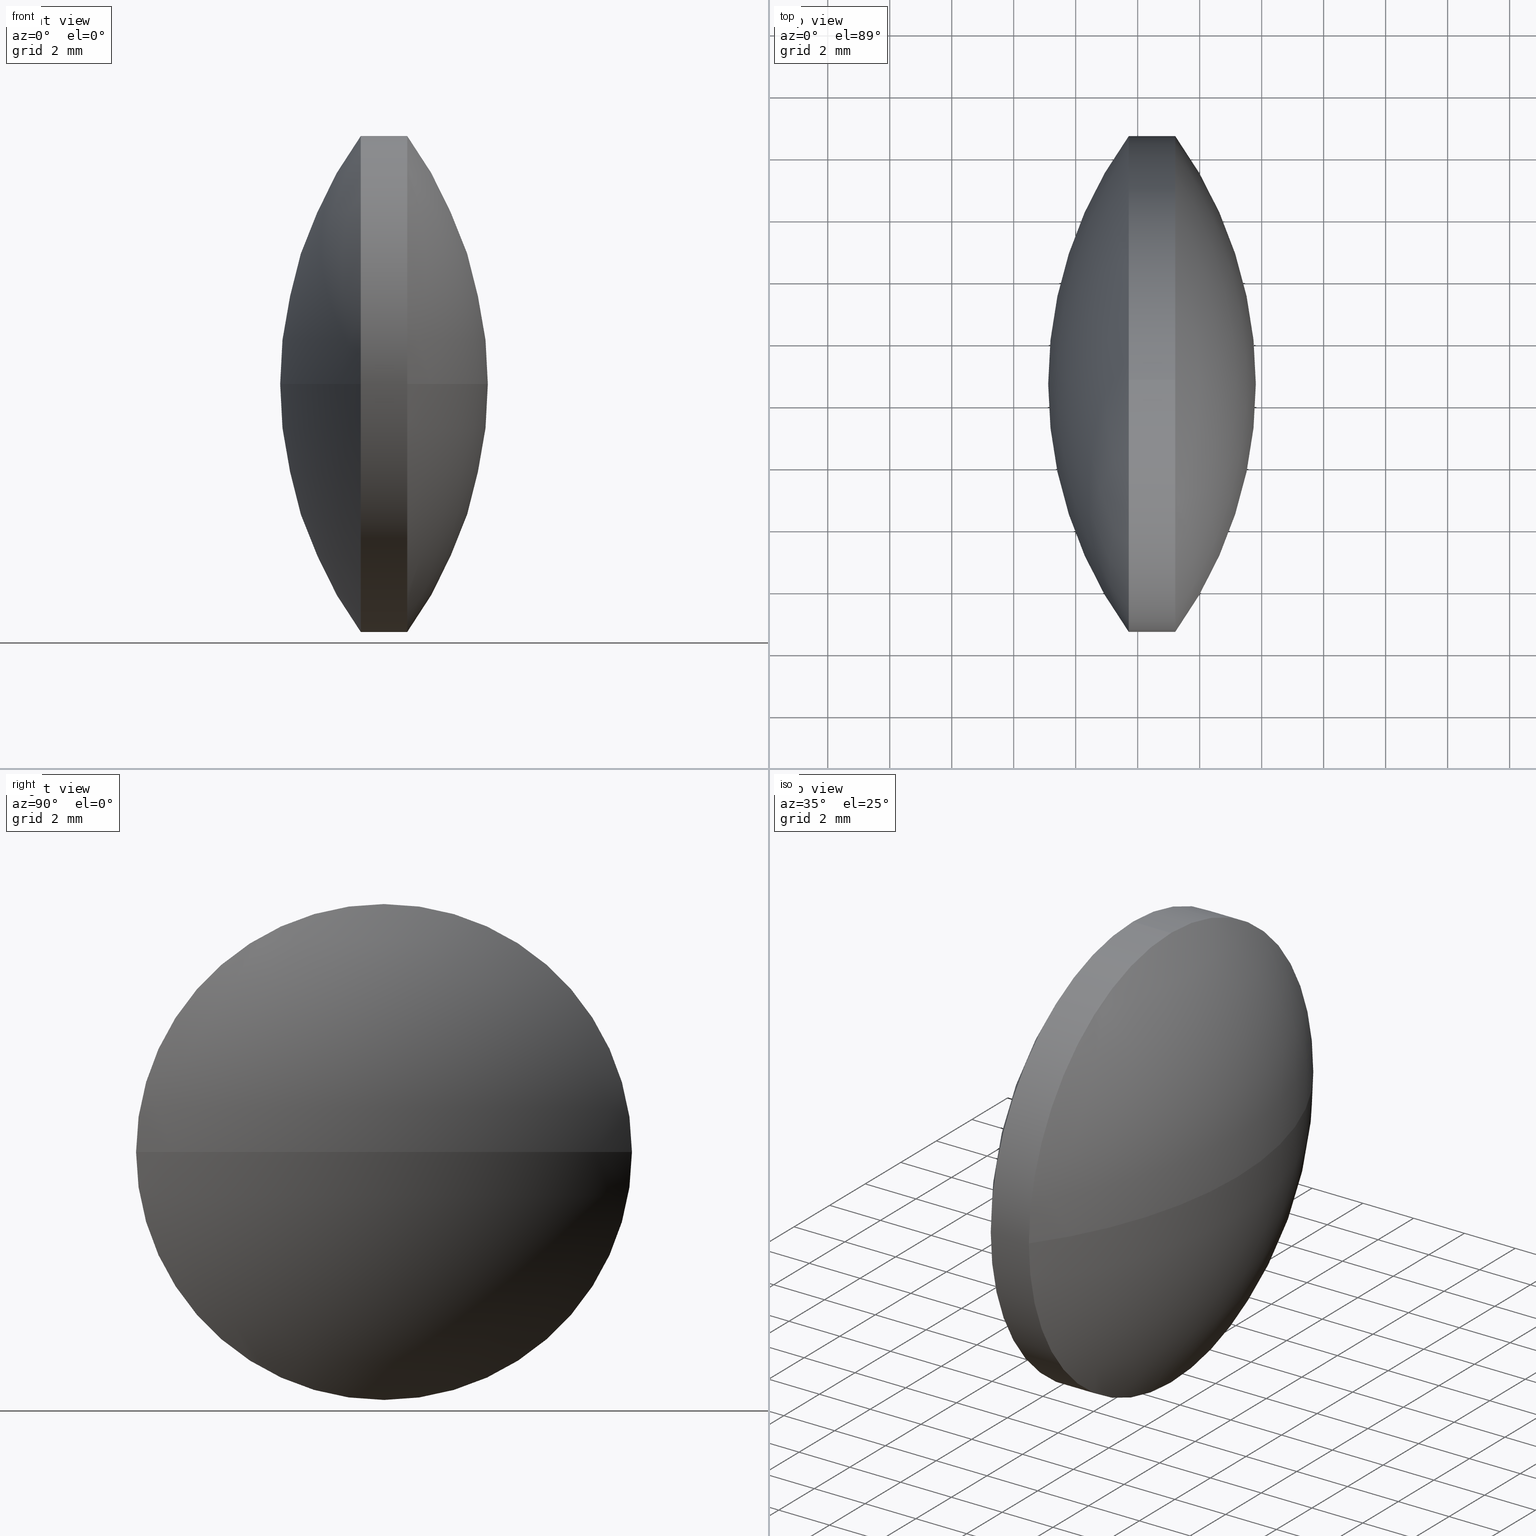
[diagram: canonical four-view strip — front | top / right | iso, engineering-drawing reading convention]
A machine part, canonical four-view strip (front | top / right | iso — engineering-drawing reading convention). The complete STEP part file that produces these views, byte-faithful:
ISO-10303-21;
HEADER;
FILE_DESCRIPTION (( 'STEP AP203' ),
    '1' );
FILE_NAME ('110096.STEP',
    '2019-07-04T03:16:30',
    ( '' ),
    ( '' ),
    'SwSTEP 2.0',
    'SolidWorks 2016',
    '' );
FILE_SCHEMA (( 'CONFIG_CONTROL_DESIGN' ));
ENDSEC;

DATA;
#1 = DIRECTION ( 'NONE',  ( 0.0000000000000000000, 0.0000000000000000000, 1.000000000000000000 ) ) ;
#2 = VERTEX_POINT ( 'NONE', #249 ) ;
#3 = DIRECTION ( 'NONE',  ( 0.0000000000000000000, 0.0000000000000000000, 1.000000000000000000 ) ) ;
#4 = DIRECTION ( 'NONE',  ( 0.0000000000000000000, 1.224646799147353200E-016, -1.000000000000000000 ) ) ;
#5 = CC_DESIGN_DATE_AND_TIME_ASSIGNMENT ( #171, #90, ( #113 ) ) ;
#6 = COORDINATED_UNIVERSAL_TIME_OFFSET ( 8, 0, .AHEAD. ) ;
#7 = DIRECTION ( 'NONE',  ( 0.0000000000000000000, 0.0000000000000000000, 1.000000000000000000 ) ) ;
#8 = DIRECTION ( 'NONE',  ( 0.0000000000000000000, 0.0000000000000000000, 1.000000000000000000 ) ) ;
#9 = CARTESIAN_POINT ( 'NONE',  ( 55.21179720338697900, 30.62432316421088900, 0.0000000000000000000 ) ) ;
#10 = ADVANCED_FACE ( 'NONE', ( #83 ), #329, .T. ) ;
#11 = APPLICATION_PROTOCOL_DEFINITION ( 'international standard', 'config_control_design', 1994, #85 ) ;
#12 = SPHERICAL_SURFACE ( 'NONE', #310, 13.60769230769229000 ) ;
#13 = APPROVAL_STATUS ( 'not_yet_approved' ) ;
#14 = LOCAL_TIME ( 11, 16, 30.00000000000000000, #245 ) ;
#15 = ADVANCED_FACE ( 'NONE', ( #246 ), #164, .T. ) ;
#16 = PERSON_AND_ORGANIZATION ( #296, #96 ) ;
#17 = APPROVAL_ROLE ( '' ) ;
#18 = PERSON_AND_ORGANIZATION_ROLE ( 'creator' ) ;
#19 = CIRCLE ( 'NONE', #169, 7.999999999999992900 ) ;
#20 = EDGE_CURVE ( 'NONE', #259, #31, #89, .T. ) ;
#21 = ORIENTED_EDGE ( 'NONE', *, *, #167, .T. ) ;
#22 = PERSON_AND_ORGANIZATION ( #296, #96 ) ;
#23 = CC_DESIGN_PERSON_AND_ORGANIZATION_ASSIGNMENT ( #173, #234, ( #87 ) ) ;
#24 = CALENDAR_DATE ( 2019, 4, 7 ) ;
#25 = PERSON_AND_ORGANIZATION ( #296, #96 ) ;
#26 = DIRECTION ( 'NONE',  ( 0.0000000000000000000, 1.000000000000000000, 0.0000000000000000000 ) ) ;
#27 = DIRECTION ( 'NONE',  ( -1.000000000000000000, -0.0000000000000000000, -0.0000000000000000000 ) ) ;
#28 = CC_DESIGN_DATE_AND_TIME_ASSIGNMENT ( #271, #300, ( #242 ) ) ;
#29 = CALENDAR_DATE ( 2019, 4, 7 ) ;
#30 = CARTESIAN_POINT ( 'NONE',  ( 64.71960379679359200, 30.62432316421088900, 0.0000000000000000000 ) ) ;
#31 = VERTEX_POINT ( 'NONE', #163 ) ;
#32 = APPROVAL_ROLE ( '' ) ;
#33 = APPLICATION_CONTEXT ( 'configuration controlled 3d designs of mechanical parts and assemblies' ) ;
#34 = CARTESIAN_POINT ( 'NONE',  ( 0.0000000000000000000, 0.0000000000000000000, 0.0000000000000000000 ) ) ;
#35 = DIRECTION ( 'NONE',  ( 1.000000000000000000, 0.0000000000000000000, 0.0000000000000000000 ) ) ;
#36 = PRODUCT ( '110096', '110096', '', ( #81 ) ) ;
#37 = EDGE_CURVE ( 'NONE', #2, #184, #187, .T. ) ;
#38 = SECURITY_CLASSIFICATION_LEVEL ( 'unclassified' ) ;
#39 = CC_DESIGN_DATE_AND_TIME_ASSIGNMENT ( #243, #148, ( #209 ) ) ;
#40 = ORIENTED_EDGE ( 'NONE', *, *, #231, .T. ) ;
#41 = VERTEX_POINT ( 'NONE', #222 ) ;
#42 = APPROVAL_PERSON_ORGANIZATION ( #194, #257, #63 ) ;
#43 = SECURITY_CLASSIFICATION_LEVEL ( 'unclassified' ) ;
#44 = LINE ( 'NONE', #238, #138 ) ;
#45 = FACE_OUTER_BOUND ( 'NONE', #139, .T. ) ;
#46 = LOCAL_TIME ( 11, 16, 30.00000000000000000, #122 ) ;
#47 = APPROVAL ( #265, 'δָ��' ) ;
#48 = COORDINATED_UNIVERSAL_TIME_OFFSET ( 8, 0, .AHEAD. ) ;
#49 = AXIS2_PLACEMENT_3D ( 'NONE', #195, #224, #327 ) ;
#50 = CARTESIAN_POINT ( 'NONE',  ( 53.71191148910125400, 30.62432316421088900, 0.0000000000000000000 ) ) ;
#51 = CARTESIAN_POINT ( 'NONE',  ( 55.21179720338697900, 30.62432316421088900, 0.0000000000000000000 ) ) ;
#52 = EDGE_CURVE ( 'NONE', #214, #320, #157, .T. ) ;
#53 = DIRECTION ( 'NONE',  ( -0.0000000000000000000, 0.0000000000000000000, -1.000000000000000000 ) ) ;
#54 = DATE_AND_TIME ( #24, #147 ) ;
#55 = AXIS2_PLACEMENT_3D ( 'NONE', #114, #27, #226 ) ;
#56 = CARTESIAN_POINT ( 'NONE',  ( 0.0000000000000000000, 0.0000000000000000000, 0.0000000000000000000 ) ) ;
#57 = UNCERTAINTY_MEASURE_WITH_UNIT (LENGTH_MEASURE( 1.000000000000000100E-005 ), #205, 'distance_accuracy_value', 'NONE');
#58 = CARTESIAN_POINT ( 'NONE',  ( 53.71191148910125400, 30.62432316421088900, 7.999999999999992900 ) ) ;
#59 = DIRECTION ( 'NONE',  ( -1.000000000000000000, -0.0000000000000000000, -0.0000000000000000000 ) ) ;
#60 = DATE_AND_TIME ( #211, #294 ) ;
#61 = APPLICATION_PROTOCOL_DEFINITION ( 'international standard', 'config_control_design', 1994, #33 ) ;
#62 = AXIS2_PLACEMENT_3D ( 'NONE', #117, #339, #338 ) ;
#63 = APPROVAL_ROLE ( '' ) ;
#64 = PERSON_AND_ORGANIZATION_ROLE ( 'creator' ) ;
#65 = PERSON_AND_ORGANIZATION ( #296, #96 ) ;
#66 = PERSON_AND_ORGANIZATION_ROLE ( 'design_owner' ) ;
#67 = AXIS2_PLACEMENT_3D ( 'NONE', #279, #74, #160 ) ;
#68 = EDGE_LOOP ( 'NONE', ( #125, #299, #323, #225 ) ) ;
#69 = AXIS2_PLACEMENT_3D ( 'NONE', #9, #292, #261 ) ;
#70 = CALENDAR_DATE ( 2019, 4, 7 ) ;
#71 = APPROVAL_PERSON_ORGANIZATION ( #65, #301, #342 ) ;
#72 = PRODUCT_RELATED_PRODUCT_CATEGORY ( 'detail', '', ( #36 ) ) ;
#73 = PERSON_AND_ORGANIZATION ( #296, #96 ) ;
#74 = DIRECTION ( 'NONE',  ( -0.0000000000000000000, 0.0000000000000000000, -1.000000000000000000 ) ) ;
#75 = CIRCLE ( 'NONE', #128, 7.999999999999992900 ) ;
#76 = PERSON_AND_ORGANIZATION ( #296, #96 ) ;
#77 = APPROVAL ( #86, 'δָ��' ) ;
#78 = DIRECTION ( 'NONE',  ( 0.0000000000000000000, 0.0000000000000000000, 1.000000000000000000 ) ) ;
#79 = APPROVAL_PERSON_ORGANIZATION ( #103, #118, #185 ) ;
#80 = DESIGN_CONTEXT ( 'detailed design', #33, 'design' ) ;
#81 = MECHANICAL_CONTEXT ( 'NONE', #85, 'mechanical' ) ;
#82 = ORIENTED_EDGE ( 'NONE', *, *, #140, .T. ) ;
#83 = FACE_OUTER_BOUND ( 'NONE', #240, .T. ) ;
#84 = AXIS2_PLACEMENT_3D ( 'NONE', #326, #106, #192 ) ;
#85 = APPLICATION_CONTEXT ( 'configuration controlled 3d designs of mechanical parts and assemblies' ) ;
#86 = APPROVAL_STATUS ( 'not_yet_approved' ) ;
#87 = PRODUCT_DEFINITION_FORMATION_WITH_SPECIFIED_SOURCE ( '�κ�', '', #36, .NOT_KNOWN. ) ;
#88 = CARTESIAN_POINT ( 'NONE',  ( 51.11191148910126000, 30.62432316421088900, 0.0000000000000000000 ) ) ;
#89 = CIRCLE ( 'NONE', #49, 13.60769230769229300 ) ;
#90 = DATE_TIME_ROLE ( 'creation_date' ) ;
#91 = COORDINATED_UNIVERSAL_TIME_OFFSET ( 8, 0, .AHEAD. ) ;
#92 = CALENDAR_DATE ( 2019, 4, 7 ) ;
#93 = APPROVAL_DATE_TIME ( #168, #301 ) ;
#94 = CC_DESIGN_PERSON_AND_ORGANIZATION_ASSIGNMENT ( #264, #239, ( #36 ) ) ;
#95 = MECHANICAL_CONTEXT ( 'NONE', #146, 'mechanical' ) ;
#96 = ORGANIZATION ( 'δָ��', 'δָ��', '' ) ;
#97 = APPROVAL_PERSON_ORGANIZATION ( #182, #47, #32 ) ;
#98 = ORIENTED_EDGE ( 'NONE', *, *, #213, .T. ) ;
#99 = CC_DESIGN_PERSON_AND_ORGANIZATION_ASSIGNMENT ( #288, #64, ( #193 ) ) ;
#100 = LOCAL_TIME ( 11, 16, 30.00000000000000000, #126 ) ;
#101 = APPROVAL_STATUS ( 'not_yet_approved' ) ;
#102 = PRODUCT_DEFINITION ( 'δ֪', '', #193, #116 ) ;
#103 = PERSON_AND_ORGANIZATION ( #296, #96 ) ;
#104 = LOCAL_TIME ( 11, 16, 30.00000000000000000, #344 ) ;
#105 = ORIENTED_EDGE ( 'NONE', *, *, #321, .T. ) ;
#106 = DIRECTION ( 'NONE',  ( -0.0000000000000000000, 0.0000000000000000000, -1.000000000000000000 ) ) ;
#107 = AXIS2_PLACEMENT_3D ( 'NONE', #165, #284, #1 ) ;
#108 = CC_DESIGN_PERSON_AND_ORGANIZATION_ASSIGNMENT ( #256, #66, ( #235 ) ) ;
#109 = DIRECTION ( 'NONE',  ( 1.000000000000000000, 0.0000000000000000000, 0.0000000000000000000 ) ) ;
#110 = CARTESIAN_POINT ( 'NONE',  ( 55.21179720338697900, 30.62432316421088900, -7.999999999999992900 ) ) ;
#111 = CARTESIAN_POINT ( 'NONE',  ( 44.20410489569469100, 30.62432316421088900, 0.0000000000000000000 ) ) ;
#112 = ORIENTED_EDGE ( 'NONE', *, *, #37, .F. ) ;
#113 = PRODUCT_DEFINITION ( 'δ֪', '', #87, #80 ) ;
#114 = CARTESIAN_POINT ( 'NONE',  ( 49.95615833123601100, 30.62432316421088900, 0.0000000000000000000 ) ) ;
#115 = ORIENTED_EDGE ( 'NONE', *, *, #247, .F. ) ;
#116 = DESIGN_CONTEXT ( 'detailed design', #270, 'design' ) ;
#117 = CARTESIAN_POINT ( 'NONE',  ( 64.71960379679359200, 30.62432316421088900, 0.0000000000000000000 ) ) ;
#118 = APPROVAL ( #101, 'δָ��' ) ;
#119 = DIRECTION ( 'NONE',  ( -1.000000000000000000, -0.0000000000000000000, -0.0000000000000000000 ) ) ;
#120 = CARTESIAN_POINT ( 'NONE',  ( 57.81179720338698800, 30.62432316421088900, 0.0000000000000000000 ) ) ;
#121 = CALENDAR_DATE ( 2019, 4, 7 ) ;
#122 = COORDINATED_UNIVERSAL_TIME_OFFSET ( 8, 0, .AHEAD. ) ;
#123 = CARTESIAN_POINT ( 'NONE',  ( 53.71191148910125400, 30.62432316421088900, 0.0000000000000000000 ) ) ;
#124 = CC_DESIGN_PERSON_AND_ORGANIZATION_ASSIGNMENT ( #203, #212, ( #209 ) ) ;
#125 = ORIENTED_EDGE ( 'NONE', *, *, #156, .F. ) ;
#126 = COORDINATED_UNIVERSAL_TIME_OFFSET ( 8, 0, .AHEAD. ) ;
#127 = APPLICATION_PROTOCOL_DEFINITION ( 'international standard', 'config_control_design', 1994, #146 ) ;
#128 = AXIS2_PLACEMENT_3D ( 'NONE', #198, #197, #311 ) ;
#129 = ORIENTED_EDGE ( 'NONE', *, *, #269, .T. ) ;
#130 = ORIENTED_EDGE ( 'NONE', *, *, #37, .T. ) ;
#131 = CC_DESIGN_PERSON_AND_ORGANIZATION_ASSIGNMENT ( #303, #272, ( #193 ) ) ;
#132 = ORIENTED_EDGE ( 'NONE', *, *, #156, .T. ) ;
#133 = ORIENTED_EDGE ( 'NONE', *, *, #321, .F. ) ;
#134 = LOCAL_TIME ( 11, 16, 30.00000000000000000, #230 ) ;
#135 = CC_DESIGN_APPROVAL ( #47, ( #87 ) ) ;
#136 = PRODUCT_DEFINITION_SHAPE ( 'NONE', 'NONE',  #113 ) ;
#137 = CC_DESIGN_PERSON_AND_ORGANIZATION_ASSIGNMENT ( #73, #241, ( #242 ) ) ;
#138 = VECTOR ( 'NONE', #119, 1000.000000000000000 ) ;
#139 = EDGE_LOOP ( 'NONE', ( #218, #248, #133, #162 ) ) ;
#140 = EDGE_CURVE ( 'NONE', #184, #31, #75, .T. ) ;
#141 = SHAPE_DEFINITION_REPRESENTATION ( #183, #312 ) ;
#142 = AXIS2_PLACEMENT_3D ( 'NONE', #268, #59, #232 ) ;
#143 = ORIENTED_EDGE ( 'NONE', *, *, #231, .F. ) ;
#144 = DIRECTION ( 'NONE',  ( 0.0000000000000000000, 1.000000000000000000, 1.224646799147353500E-016 ) ) ;
#145 = CARTESIAN_POINT ( 'NONE',  ( 53.71191148910125400, 30.62432316421088900, -7.999999999999992900 ) ) ;
#146 = APPLICATION_CONTEXT ( 'configuration controlled 3d designs of mechanical parts and assemblies' ) ;
#147 = LOCAL_TIME ( 11, 16, 30.00000000000000000, #228 ) ;
#148 = DATE_TIME_ROLE ( 'classification_date' ) ;
#149 = CALENDAR_DATE ( 2019, 4, 7 ) ;
#150 = CC_DESIGN_SECURITY_CLASSIFICATION ( #209, ( #87 ) ) ;
#151 = APPLICATION_PROTOCOL_DEFINITION ( 'international standard', 'config_control_design', 1994, #270 ) ;
#152 = ADVANCED_FACE ( 'NONE', ( #45 ), #12, .T. ) ;
#153 = CIRCLE ( 'NONE', #250, 7.999999999999992900 ) ;
#154 = CC_DESIGN_APPROVAL ( #257, ( #242 ) ) ;
#155 = VERTEX_POINT ( 'NONE', #332 ) ;
#156 = EDGE_CURVE ( 'NONE', #214, #318, #227, .T. ) ;
#157 = CIRCLE ( 'NONE', #186, 7.999999999999992900 ) ;
#158 = CC_DESIGN_PERSON_AND_ORGANIZATION_ASSIGNMENT ( #16, #263, ( #87 ) ) ;
#159 = APPROVAL_PERSON_ORGANIZATION ( #25, #306, #17 ) ;
#160 = DIRECTION ( 'NONE',  ( 0.0000000000000000000, 1.000000000000000000, 0.0000000000000000000 ) ) ;
#161 = LINE ( 'NONE', #200, #304 ) ;
#162 = ORIENTED_EDGE ( 'NONE', *, *, #213, .F. ) ;
#163 = CARTESIAN_POINT ( 'NONE',  ( 55.21179720338697900, 22.62432316421089600, -9.797174393178819700E-016 ) ) ;
#164 = SPHERICAL_SURFACE ( 'NONE', #84, 13.60769230769232900 ) ;
#165 = CARTESIAN_POINT ( 'NONE',  ( 55.21179720338697900, 30.62432316421088900, 0.0000000000000000000 ) ) ;
#166 = DIRECTION ( 'NONE',  ( -1.000000000000000000, -0.0000000000000000000, -0.0000000000000000000 ) ) ;
#167 = EDGE_CURVE ( 'NONE', #252, #214, #316, .T. ) ;
#168 = DATE_AND_TIME ( #29, #104 ) ;
#169 = AXIS2_PLACEMENT_3D ( 'NONE', #123, #314, #7 ) ;
#170 = FACE_OUTER_BOUND ( 'NONE', #68, .T. ) ;
#171 = DATE_AND_TIME ( #258, #14 ) ;
#172 = DIRECTION ( 'NONE',  ( 0.0000000000000000000, 0.0000000000000000000, 1.000000000000000000 ) ) ;
#173 = PERSON_AND_ORGANIZATION ( #296, #96 ) ;
#174 = PRODUCT_RELATED_PRODUCT_CATEGORY ( 'detail', '', ( #235 ) ) ;
#175 =( NAMED_UNIT ( * ) PLANE_ANGLE_UNIT ( ) SI_UNIT ( $, .RADIAN. ) );
#176 = MANIFOLD_SOLID_BREP ( '��ת1', #282 ) ;
#177 = EDGE_CURVE ( 'NONE', #41, #318, #340, .T. ) ;
#178 = ORIENTED_EDGE ( 'NONE', *, *, #140, .F. ) ;
#179 = APPROVAL_STATUS ( 'not_yet_approved' ) ;
#180 = CC_DESIGN_APPROVAL ( #306, ( #209 ) ) ;
#181 = ADVANCED_FACE ( 'NONE', ( #302 ), #206, .T. ) ;
#182 = PERSON_AND_ORGANIZATION ( #296, #96 ) ;
#183 = PRODUCT_DEFINITION_SHAPE ( 'NONE', 'NONE',  #102 ) ;
#184 = VERTEX_POINT ( 'NONE', #110 ) ;
#185 = APPROVAL_ROLE ( '' ) ;
#186 = AXIS2_PLACEMENT_3D ( 'NONE', #201, #166, #3 ) ;
#187 = CIRCLE ( 'NONE', #107, 7.999999999999992900 ) ;
#188 = AXIS2_PLACEMENT_3D ( 'NONE', #34, #8, #35 ) ;
#189 = APPROVAL_DATE_TIME ( #331, #306 ) ;
#190 = EDGE_LOOP ( 'NONE', ( #143, #82, #98, #129, #281, #275 ) ) ;
#191 = DATE_AND_TIME ( #70, #223 ) ;
#192 = DIRECTION ( 'NONE',  ( 0.0000000000000000000, 1.000000000000000000, 0.0000000000000000000 ) ) ;
#193 = PRODUCT_DEFINITION_FORMATION_WITH_SPECIFIED_SOURCE ( '�κ�', '', #235, .NOT_KNOWN. ) ;
#194 = PERSON_AND_ORGANIZATION ( #296, #96 ) ;
#195 = CARTESIAN_POINT ( 'NONE',  ( 44.20410489569469100, 30.62432316421088900, 0.0000000000000000000 ) ) ;
#196 = AXIS2_PLACEMENT_3D ( 'NONE', #208, #315, #237 ) ;
#197 = DIRECTION ( 'NONE',  ( -1.000000000000000000, -0.0000000000000000000, -0.0000000000000000000 ) ) ;
#198 = CARTESIAN_POINT ( 'NONE',  ( 55.21179720338697900, 30.62432316421088900, 0.0000000000000000000 ) ) ;
#199 = APPROVAL_DATE_TIME ( #54, #47 ) ;
#200 = CARTESIAN_POINT ( 'NONE',  ( 49.95615833123601100, 30.62432316421088900, -7.999999999999992900 ) ) ;
#201 = CARTESIAN_POINT ( 'NONE',  ( 53.71191148910125400, 30.62432316421088900, 0.0000000000000000000 ) ) ;
#202 = CC_DESIGN_DATE_AND_TIME_ASSIGNMENT ( #309, #322, ( #102 ) ) ;
#203 = PERSON_AND_ORGANIZATION ( #296, #96 ) ;
#204 = AXIS2_PLACEMENT_3D ( 'NONE', #30, #4, #144 ) ;
#205 =( LENGTH_UNIT ( ) NAMED_UNIT ( * ) SI_UNIT ( .MILLI., .METRE. ) );
#206 = CYLINDRICAL_SURFACE ( 'NONE', #55, 7.999999999999992900 ) ;
#207 = ORIENTED_EDGE ( 'NONE', *, *, #229, .F. ) ;
#208 = CARTESIAN_POINT ( 'NONE',  ( 44.20410489569469100, 30.62432316421088900, 0.0000000000000000000 ) ) ;
#209 = SECURITY_CLASSIFICATION ( '', '', #43 ) ;
#210 = DIRECTION ( 'NONE',  ( 0.0000000000000000000, 0.0000000000000000000, 1.000000000000000000 ) ) ;
#211 = CALENDAR_DATE ( 2019, 4, 7 ) ;
#212 = PERSON_AND_ORGANIZATION_ROLE ( 'classification_officer' ) ;
#213 = EDGE_CURVE ( 'NONE', #31, #155, #277, .T. ) ;
#214 = VERTEX_POINT ( 'NONE', #307 ) ;
#215 = LOCAL_TIME ( 11, 16, 30.00000000000000000, #91 ) ;
#216 = LOCAL_TIME ( 11, 16, 30.00000000000000000, #6 ) ;
#217 = CC_DESIGN_PERSON_AND_ORGANIZATION_ASSIGNMENT ( #76, #289, ( #113 ) ) ;
#218 = ORIENTED_EDGE ( 'NONE', *, *, #20, .F. ) ;
#219 = APPROVAL_DATE_TIME ( #60, #257 ) ;
#220 = ORIENTED_EDGE ( 'NONE', *, *, #247, .T. ) ;
#221 = AXIS2_PLACEMENT_3D ( 'NONE', #50, #251, #328 ) ;
#222 = CARTESIAN_POINT ( 'NONE',  ( 53.71191148910125400, 38.62432316421088500, 0.0000000000000000000 ) ) ;
#223 = LOCAL_TIME ( 11, 16, 30.00000000000000000, #48 ) ;
#224 = DIRECTION ( 'NONE',  ( 0.0000000000000000000, 1.224646799147353200E-016, -1.000000000000000000 ) ) ;
#225 = ORIENTED_EDGE ( 'NONE', *, *, #177, .T. ) ;
#226 = DIRECTION ( 'NONE',  ( 0.0000000000000000000, 0.0000000000000000000, 1.000000000000000000 ) ) ;
#227 = CIRCLE ( 'NONE', #204, 13.60769230769232700 ) ;
#228 = COORDINATED_UNIVERSAL_TIME_OFFSET ( 8, 0, .AHEAD. ) ;
#229 = EDGE_CURVE ( 'NONE', #320, #41, #19, .T. ) ;
#230 = COORDINATED_UNIVERSAL_TIME_OFFSET ( 8, 0, .AHEAD. ) ;
#231 = EDGE_CURVE ( 'NONE', #184, #252, #161, .T. ) ;
#232 = DIRECTION ( 'NONE',  ( 0.0000000000000000000, 0.0000000000000000000, 1.000000000000000000 ) ) ;
#233 = CIRCLE ( 'NONE', #69, 7.999999999999992900 ) ;
#234 = PERSON_AND_ORGANIZATION_ROLE ( 'design_supplier' ) ;
#235 = PRODUCT ( '110096', '110096', '', ( #95 ) ) ;
#236 = CC_DESIGN_APPROVAL ( #301, ( #193 ) ) ;
#237 = DIRECTION ( 'NONE',  ( 1.000000000000000000, 0.0000000000000000000, 0.0000000000000000000 ) ) ;
#238 = CARTESIAN_POINT ( 'NONE',  ( 49.95615833123601100, 30.62432316421088900, 7.999999999999992900 ) ) ;
#239 = PERSON_AND_ORGANIZATION_ROLE ( 'design_owner' ) ;
#240 = EDGE_LOOP ( 'NONE', ( #285, #325, #178, #112 ) ) ;
#241 = PERSON_AND_ORGANIZATION_ROLE ( 'classification_officer' ) ;
#242 = SECURITY_CLASSIFICATION ( '', '', #38 ) ;
#243 = DATE_AND_TIME ( #92, #100 ) ;
#244 = PERSON_AND_ORGANIZATION ( #296, #96 ) ;
#245 = COORDINATED_UNIVERSAL_TIME_OFFSET ( 8, 0, .AHEAD. ) ;
#246 = FACE_OUTER_BOUND ( 'NONE', #278, .T. ) ;
#247 = EDGE_CURVE ( 'NONE', #41, #252, #153, .T. ) ;
#248 = ORIENTED_EDGE ( 'NONE', *, *, #286, .T. ) ;
#249 = CARTESIAN_POINT ( 'NONE',  ( 55.21179720338697900, 38.62432316421088500, 0.0000000000000000000 ) ) ;
#250 = AXIS2_PLACEMENT_3D ( 'NONE', #333, #293, #172 ) ;
#251 = DIRECTION ( 'NONE',  ( -1.000000000000000000, -0.0000000000000000000, -0.0000000000000000000 ) ) ;
#252 = VERTEX_POINT ( 'NONE', #145 ) ;
#253 = CARTESIAN_POINT ( 'NONE',  ( 64.71960379679359200, 30.62432316421088900, 0.0000000000000000000 ) ) ;
#254 = APPROVAL_DATE_TIME ( #267, #118 ) ;
#255 = DIRECTION ( 'NONE',  ( -1.000000000000000000, -0.0000000000000000000, -0.0000000000000000000 ) ) ;
#256 = PERSON_AND_ORGANIZATION ( #296, #96 ) ;
#257 = APPROVAL ( #319, 'δָ��' ) ;
#258 = CALENDAR_DATE ( 2019, 4, 7 ) ;
#259 = VERTEX_POINT ( 'NONE', #120 ) ;
#260 = CALENDAR_DATE ( 2019, 4, 7 ) ;
#261 = DIRECTION ( 'NONE',  ( 0.0000000000000000000, 0.0000000000000000000, 1.000000000000000000 ) ) ;
#262 = COORDINATED_UNIVERSAL_TIME_OFFSET ( 8, 0, .AHEAD. ) ;
#263 = PERSON_AND_ORGANIZATION_ROLE ( 'creator' ) ;
#264 = PERSON_AND_ORGANIZATION ( #296, #96 ) ;
#265 = APPROVAL_STATUS ( 'not_yet_approved' ) ;
#266 = CC_DESIGN_PERSON_AND_ORGANIZATION_ASSIGNMENT ( #22, #18, ( #102 ) ) ;
#267 = DATE_AND_TIME ( #121, #134 ) ;
#268 = CARTESIAN_POINT ( 'NONE',  ( 49.95615833123601100, 30.62432316421088900, 0.0000000000000000000 ) ) ;
#269 = EDGE_CURVE ( 'NONE', #155, #320, #44, .T. ) ;
#270 = APPLICATION_CONTEXT ( 'configuration controlled 3d designs of mechanical parts and assemblies' ) ;
#271 = DATE_AND_TIME ( #334, #216 ) ;
#272 = PERSON_AND_ORGANIZATION_ROLE ( 'design_supplier' ) ;
#273 = AXIS2_PLACEMENT_3D ( 'NONE', #51, #255, #78 ) ;
#274 = CIRCLE ( 'NONE', #196, 13.60769230769229300 ) ;
#275 = ORIENTED_EDGE ( 'NONE', *, *, #167, .F. ) ;
#276 = CC_DESIGN_APPROVAL ( #77, ( #113 ) ) ;
#277 = CIRCLE ( 'NONE', #273, 7.999999999999992900 ) ;
#278 = EDGE_LOOP ( 'NONE', ( #220, #21, #132, #337 ) ) ;
#279 = CARTESIAN_POINT ( 'NONE',  ( 44.20410489569469100, 30.62432316421088900, 0.0000000000000000000 ) ) ;
#280 = SPHERICAL_SURFACE ( 'NONE', #62, 13.60769230769232900 ) ;
#281 = ORIENTED_EDGE ( 'NONE', *, *, #52, .F. ) ;
#282 = CLOSED_SHELL ( 'NONE', ( #181, #10, #15, #290, #152, #341 ) ) ;
#283 = DIRECTION ( 'NONE',  ( -0.0000000000000000000, 0.0000000000000000000, 1.000000000000000000 ) ) ;
#284 = DIRECTION ( 'NONE',  ( -1.000000000000000000, -0.0000000000000000000, -0.0000000000000000000 ) ) ;
#285 = ORIENTED_EDGE ( 'NONE', *, *, #286, .F. ) ;
#286 = EDGE_CURVE ( 'NONE', #259, #2, #274, .T. ) ;
#287 = DIRECTION ( 'NONE',  ( -1.000000000000000000, -0.0000000000000000000, -0.0000000000000000000 ) ) ;
#288 = PERSON_AND_ORGANIZATION ( #296, #96 ) ;
#289 = PERSON_AND_ORGANIZATION_ROLE ( 'creator' ) ;
#290 = ADVANCED_FACE ( 'NONE', ( #170 ), #280, .T. ) ;
#291 =( GEOMETRIC_REPRESENTATION_CONTEXT ( 3 ) GLOBAL_UNCERTAINTY_ASSIGNED_CONTEXT ( ( #57 ) ) GLOBAL_UNIT_ASSIGNED_CONTEXT ( ( #205, #175, #295 ) ) REPRESENTATION_CONTEXT ( 'NONE', 'WORKASPACE' ) );
#292 = DIRECTION ( 'NONE',  ( -1.000000000000000000, -0.0000000000000000000, -0.0000000000000000000 ) ) ;
#293 = DIRECTION ( 'NONE',  ( -1.000000000000000000, -0.0000000000000000000, -0.0000000000000000000 ) ) ;
#294 = LOCAL_TIME ( 11, 16, 30.00000000000000000, #262 ) ;
#295 =( NAMED_UNIT ( * ) SI_UNIT ( $, .STERADIAN. ) SOLID_ANGLE_UNIT ( ) );
#296 = PERSON ( 'δָ��', 'δָ��', 'δָ��', ('δָ��'), ('δָ��'), ('δָ��') ) ;
#297 = CC_DESIGN_SECURITY_CLASSIFICATION ( #242, ( #193 ) ) ;
#298 = CYLINDRICAL_SURFACE ( 'NONE', #142, 7.999999999999992900 ) ;
#299 = ORIENTED_EDGE ( 'NONE', *, *, #52, .T. ) ;
#300 = DATE_TIME_ROLE ( 'classification_date' ) ;
#301 = APPROVAL ( #13, 'δָ��' ) ;
#302 = FACE_OUTER_BOUND ( 'NONE', #308, .T. ) ;
#303 = PERSON_AND_ORGANIZATION ( #296, #96 ) ;
#304 = VECTOR ( 'NONE', #287, 1000.000000000000000 ) ;
#305 = ORIENTED_EDGE ( 'NONE', *, *, #269, .F. ) ;
#306 = APPROVAL ( #179, 'δָ��' ) ;
#307 = CARTESIAN_POINT ( 'NONE',  ( 53.71191148910125400, 22.62432316421089600, -9.797174393178819700E-016 ) ) ;
#308 = EDGE_LOOP ( 'NONE', ( #130, #40, #115, #207, #305, #105 ) ) ;
#309 = DATE_AND_TIME ( #149, #215 ) ;
#310 = AXIS2_PLACEMENT_3D ( 'NONE', #111, #53, #26 ) ;
#311 = DIRECTION ( 'NONE',  ( 0.0000000000000000000, 0.0000000000000000000, 1.000000000000000000 ) ) ;
#312 = ADVANCED_BREP_SHAPE_REPRESENTATION ( '110096', ( #176, #330 ), #291 ) ;
#313 = DIRECTION ( 'NONE',  ( 1.000000000000000000, 0.0000000000000000000, 0.0000000000000000000 ) ) ;
#314 = DIRECTION ( 'NONE',  ( -1.000000000000000000, -0.0000000000000000000, -0.0000000000000000000 ) ) ;
#315 = DIRECTION ( 'NONE',  ( -0.0000000000000000000, 0.0000000000000000000, 1.000000000000000000 ) ) ;
#316 = CIRCLE ( 'NONE', #221, 7.999999999999992900 ) ;
#317 = AXIS2_PLACEMENT_3D ( 'NONE', #253, #283, #109 ) ;
#318 = VERTEX_POINT ( 'NONE', #88 ) ;
#319 = APPROVAL_STATUS ( 'not_yet_approved' ) ;
#320 = VERTEX_POINT ( 'NONE', #58 ) ;
#321 = EDGE_CURVE ( 'NONE', #155, #2, #233, .T. ) ;
#322 = DATE_TIME_ROLE ( 'creation_date' ) ;
#323 = ORIENTED_EDGE ( 'NONE', *, *, #229, .T. ) ;
#324 = APPROVAL_DATE_TIME ( #191, #77 ) ;
#325 = ORIENTED_EDGE ( 'NONE', *, *, #20, .T. ) ;
#326 = CARTESIAN_POINT ( 'NONE',  ( 64.71960379679359200, 30.62432316421088900, 0.0000000000000000000 ) ) ;
#327 = DIRECTION ( 'NONE',  ( 0.0000000000000000000, 1.000000000000000000, 1.224646799147353000E-016 ) ) ;
#328 = DIRECTION ( 'NONE',  ( 0.0000000000000000000, 0.0000000000000000000, 1.000000000000000000 ) ) ;
#329 = SPHERICAL_SURFACE ( 'NONE', #67, 13.60769230769229000 ) ;
#330 = AXIS2_PLACEMENT_3D ( 'NONE', #56, #210, #313 ) ;
#331 = DATE_AND_TIME ( #260, #46 ) ;
#332 = CARTESIAN_POINT ( 'NONE',  ( 55.21179720338697900, 30.62432316421088900, 7.999999999999992900 ) ) ;
#333 = CARTESIAN_POINT ( 'NONE',  ( 53.71191148910125400, 30.62432316421088900, 0.0000000000000000000 ) ) ;
#334 = CALENDAR_DATE ( 2019, 4, 7 ) ;
#335 = APPROVAL_ROLE ( '' ) ;
#336 = CC_DESIGN_APPROVAL ( #118, ( #102 ) ) ;
#337 = ORIENTED_EDGE ( 'NONE', *, *, #177, .F. ) ;
#338 = DIRECTION ( 'NONE',  ( 0.0000000000000000000, 1.000000000000000000, 0.0000000000000000000 ) ) ;
#339 = DIRECTION ( 'NONE',  ( -0.0000000000000000000, 0.0000000000000000000, -1.000000000000000000 ) ) ;
#340 = CIRCLE ( 'NONE', #317, 13.60769230769233400 ) ;
#341 = ADVANCED_FACE ( 'NONE', ( #345 ), #298, .T. ) ;
#342 = APPROVAL_ROLE ( '' ) ;
#343 = APPROVAL_PERSON_ORGANIZATION ( #244, #77, #335 ) ;
#344 = COORDINATED_UNIVERSAL_TIME_OFFSET ( 8, 0, .AHEAD. ) ;
#345 = FACE_OUTER_BOUND ( 'NONE', #190, .T. ) ;
ENDSEC;
END-ISO-10303-21;
